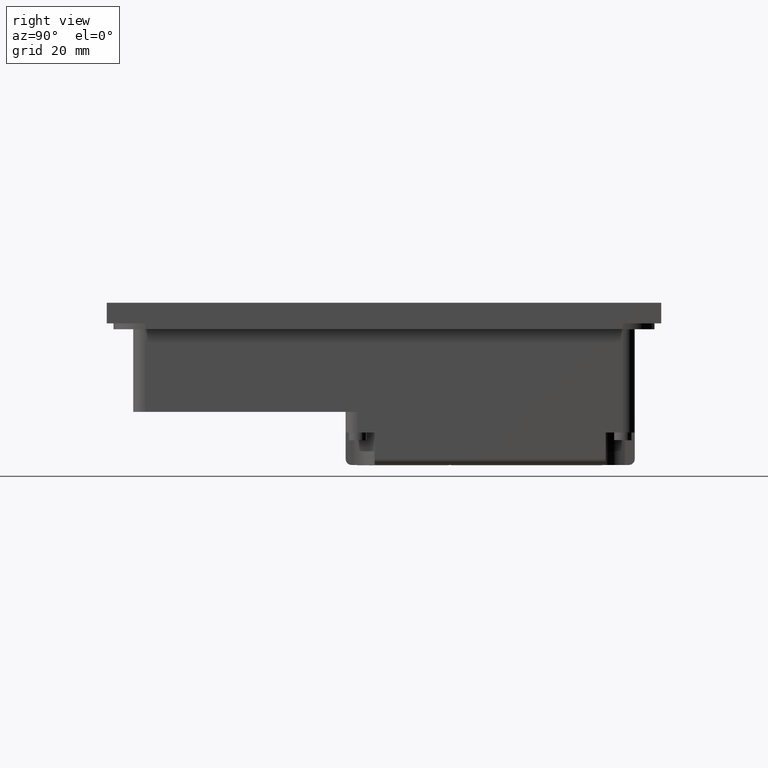
[diagram: clean part render]
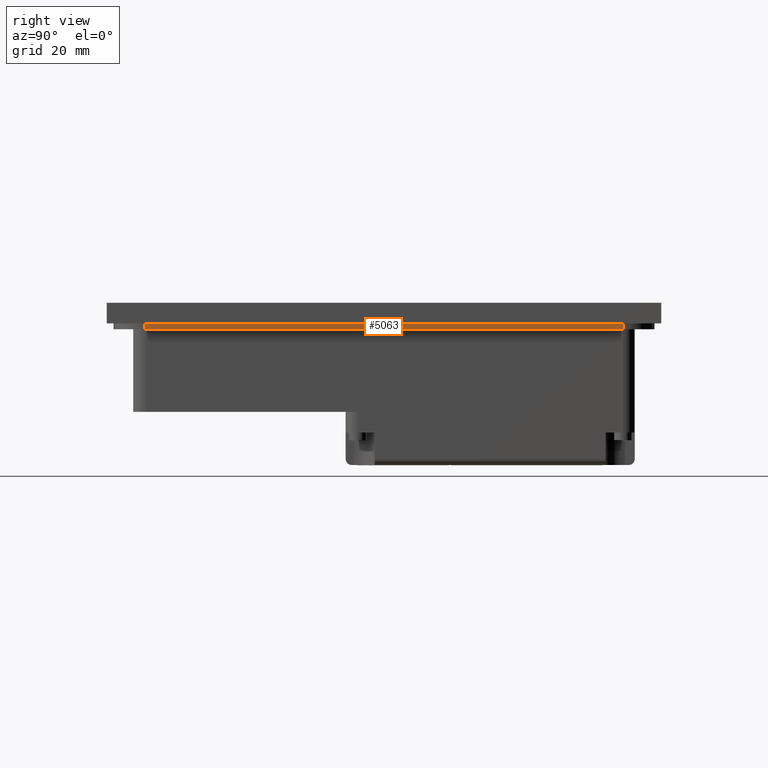
[diagram: same view with one face highlighted and labeled with its STEP entity id]
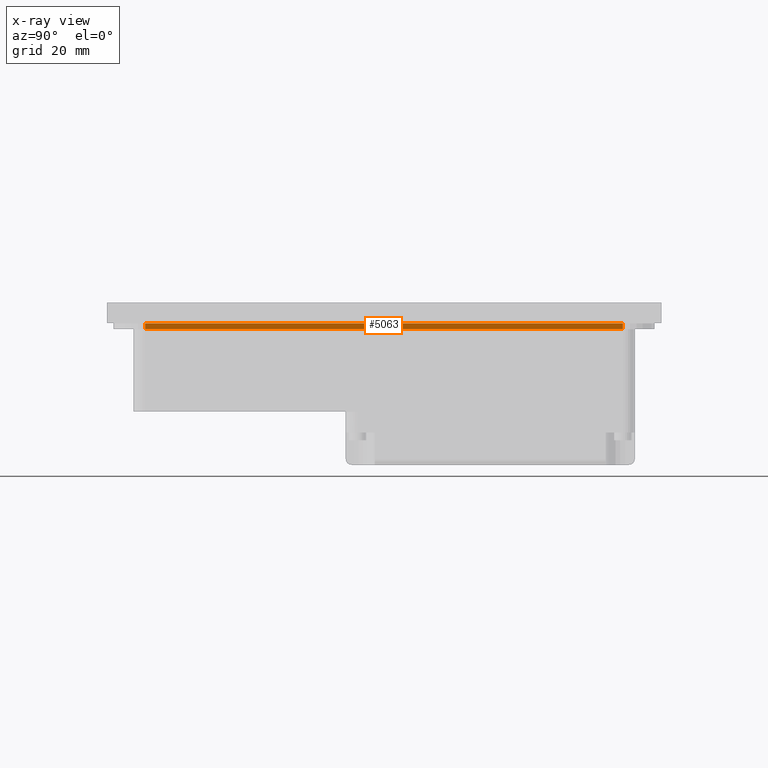
[diagram: x-ray of the same camera — body ghosted, the highlighted face saturated]
A machine part, right view. The second image highlights one B-rep face of the part: STEP entity #5063.
The next image is the same camera in x-ray: the body ghosted, the highlighted face saturated — about 0% of this face is hidden behind the body in this view.
In plain terms, the highlighted planar face has unit normal (1, 0, 0).
Its self-contained STEP definition (entity closure, byte-faithful):
#5063=ADVANCED_FACE('',(#10048),#7669,.T.);
#7669=PLANE('',#51050);
#10048=FACE_OUTER_BOUND('',#12617,.T.);
#12617=EDGE_LOOP('',(#17806,#17807,#17808,#17809));
#17806=ORIENTED_EDGE('',*,*,#33654,.F.);
#17807=ORIENTED_EDGE('',*,*,#33655,.F.);
#17808=ORIENTED_EDGE('',*,*,#33656,.T.);
#17809=ORIENTED_EDGE('',*,*,#33657,.T.);
#28838=VERTEX_POINT('',#67545);
#28839=VERTEX_POINT('',#67546);
#28840=VERTEX_POINT('',#67548);
#28841=VERTEX_POINT('',#67550);
#33654=EDGE_CURVE('',#28838,#28839,#39936,.T.);
#33655=EDGE_CURVE('',#28840,#28838,#39937,.T.);
#33656=EDGE_CURVE('',#28840,#28841,#39938,.T.);
#33657=EDGE_CURVE('',#28841,#28839,#39939,.T.);
#39936=LINE('',#67544,#45626);
#39937=LINE('',#67547,#45627);
#39938=LINE('',#67549,#45628);
#39939=LINE('',#67551,#45629);
#45626=VECTOR('',#55848,1.);
#45627=VECTOR('',#55849,1.);
#45628=VECTOR('',#55850,1.);
#45629=VECTOR('',#55851,1.);
#51050=AXIS2_PLACEMENT_3D('',#67552,#55852,#55853);
#55848=DIRECTION('',(0.,-1.,0.));
#55849=DIRECTION('',(0.,0.,1.));
#55850=DIRECTION('',(0.,-1.,0.));
#55851=DIRECTION('',(0.,0.,1.));
#55852=DIRECTION('',(-1.,0.,0.));
#55853=DIRECTION('',(0.,0.,1.));
#67544=CARTESIAN_POINT('',(-73.7,117.65,-6.));
#67545=CARTESIAN_POINT('',(-73.7,117.65,-6.));
#67546=CARTESIAN_POINT('',(-73.7,-44.35,-6.));
#67547=CARTESIAN_POINT('',(-73.7,117.65,-8.));
#67548=CARTESIAN_POINT('',(-73.7,117.65,-8.));
#67549=CARTESIAN_POINT('',(-73.7,117.65,-8.));
#67550=CARTESIAN_POINT('',(-73.7,-44.35,-8.));
#67551=CARTESIAN_POINT('',(-73.7,-44.35,-8.));
#67552=CARTESIAN_POINT('',(-73.7,117.65,-8.));